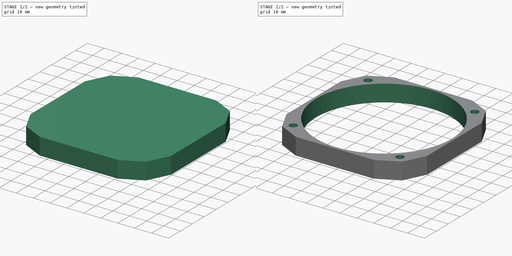
[diagram: build sequence overview — one tinted view per stage of 2, left to right]
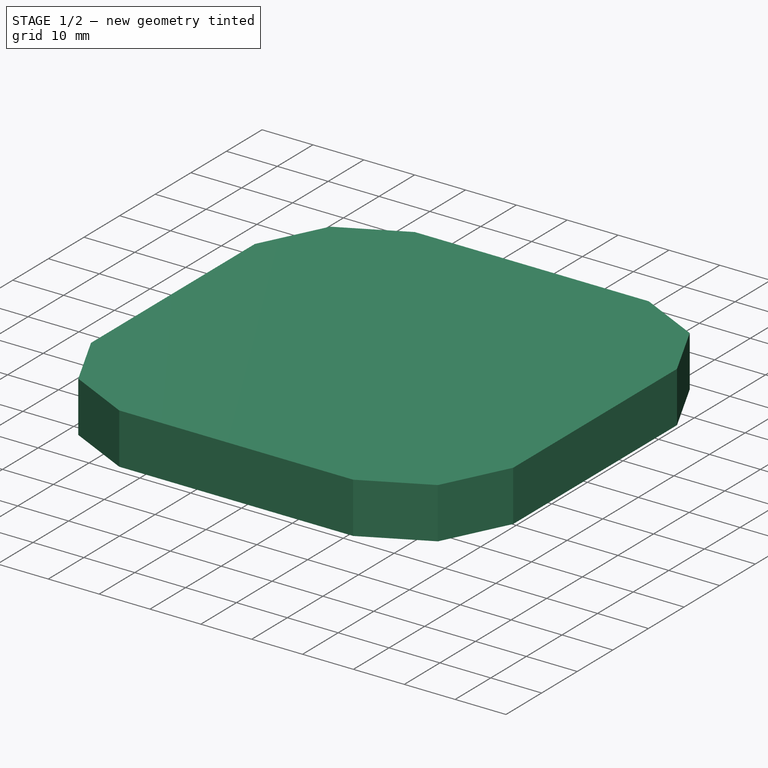
[diagram: stage 1 of 2 — iso view after this stage's code; geometry added in this stage tinted green]
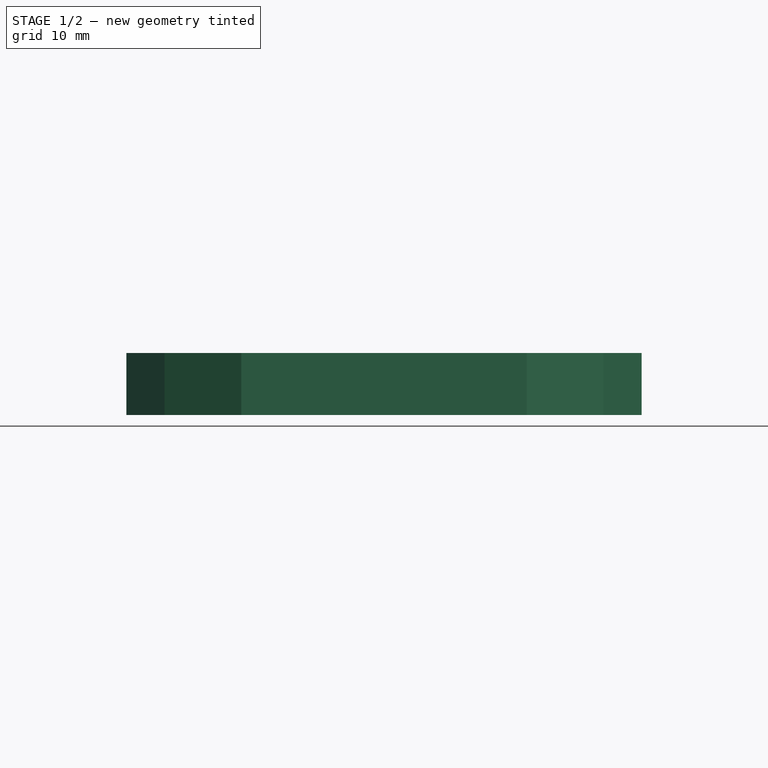
[diagram: stage 1 of 2 — front view after this stage's code; geometry added in this stage tinted green]
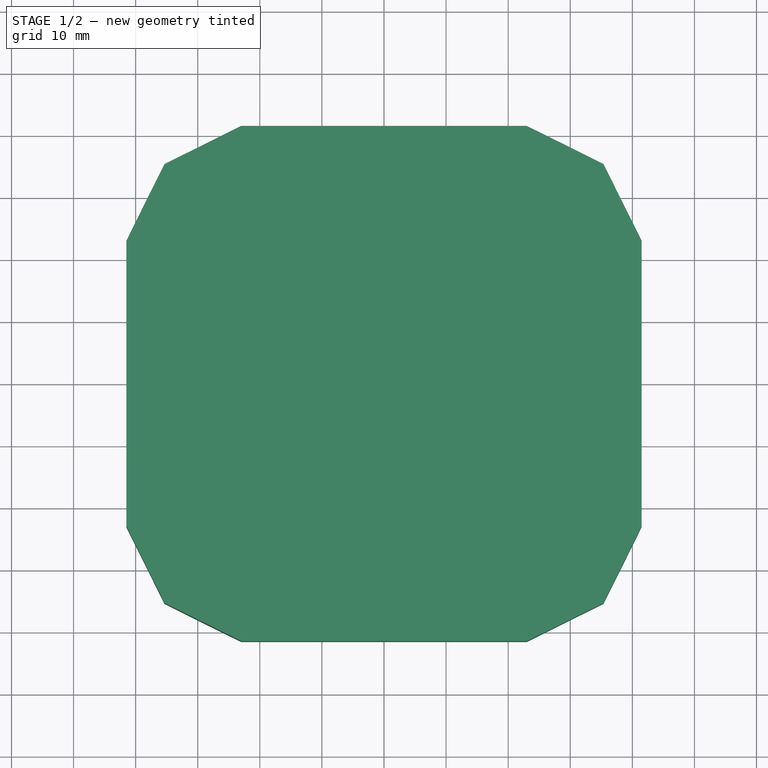
[diagram: stage 1 of 2 — top view after this stage's code; geometry added in this stage tinted green]
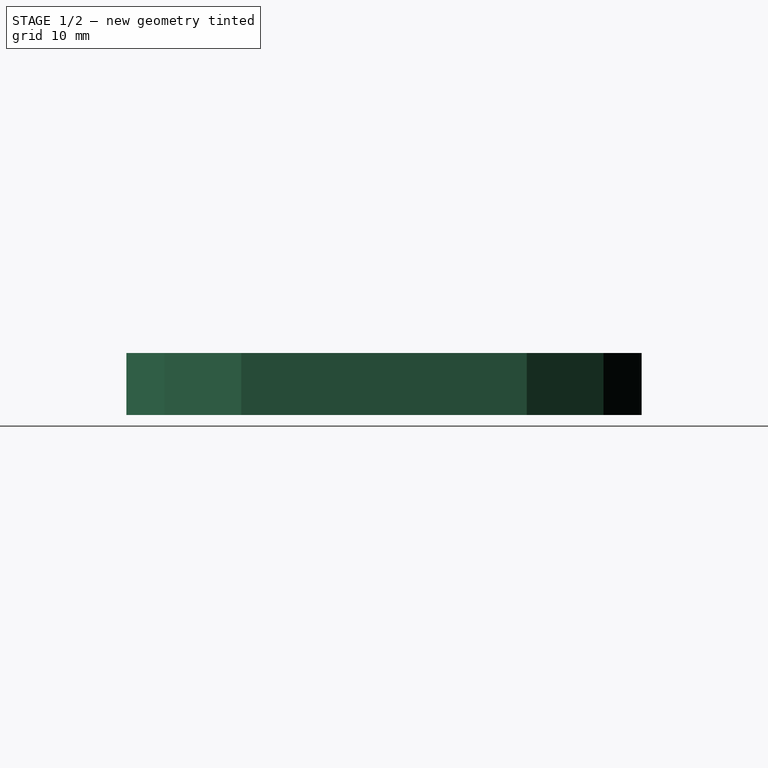
[diagram: stage 1 of 2 — right view after this stage's code; geometry added in this stage tinted green]
FCSTD DOCUMENT  (FreeCAD 0.18.3R)
Label: 80mm_Rundinstrument
License: All rights reserved
LicenseURL: http://en.wikipedia.org/wiki/All_rights_reserved
objects: Sketcher::SketchObject×2, PartDesign::Pad×1, PartDesign::Pocket×1, PartDesign::Body×1
note: 7 computed .brp shape members not serialized (recipe doc carries the construction recipe); baked Part::Feature solids carry a one-line shape summary decoded from their .brp

FEATURE [Sketcher::SketchObject] Sketch  label="Bohrungen_Rundinstrument_80mm"
  MapMode = 5
  sketch-geometry (16):
    g0: Circle CenterX=0 CenterY=0 CenterZ=0 NormalX=0 NormalY=0 NormalZ=1 AngleXU=0 Radius=40
    g1: Circle [constr] CenterX=0 CenterY=0 CenterZ=0 NormalX=0 NormalY=0 NormalZ=1 AngleXU=0 Radius=44.5
    g2: LineSegment [constr] StartX=0 StartY=-40 StartZ=0 EndX=0 EndY=40 EndZ=0
    g3: LineSegment [constr] StartX=-31.4663 StartY=31.4663 StartZ=0 EndX=31.4663 EndY=-31.4663 EndZ=0
    g4: LineSegment [constr] StartX=31.4663 StartY=31.4663 StartZ=0 EndX=-31.4663 EndY=-31.4663 EndZ=0
    g5: GeomPoint X=31.4663 Y=31.4663 Z=0
    g6: GeomPoint X=-31.4663 Y=31.4663 Z=0
    g7: GeomPoint X=31.4663 Y=31.4663 Z=0
    g8: GeomPoint X=-31.4663 Y=31.4663 Z=0
    g9: Circle CenterX=31.4663 CenterY=31.4663 CenterZ=0 NormalX=0 NormalY=0 NormalZ=1 AngleXU=0 Radius=2.25
    g10: Circle CenterX=-31.4663 CenterY=31.4663 CenterZ=0 NormalX=0 NormalY=0 NormalZ=1 AngleXU=0 Radius=2.25
    g11: Circle CenterX=31.4663 CenterY=-31.4663 CenterZ=0 NormalX=0 NormalY=0 NormalZ=1 AngleXU=0 Radius=2.25
    g12: GeomPoint X=-31.4663 Y=-31.4663 Z=0
    g13: GeomPoint X=31.4663 Y=-31.4663 Z=0
    g14: GeomPoint X=31.4663 Y=-31.4663 Z=0
    g15: Circle CenterX=-31.4663 CenterY=-31.4663 CenterZ=0 NormalX=0 NormalY=0 NormalZ=1 AngleXU=0 Radius=2.25
  constraints (38):
    c: DistanceX(g0) = 0
    c: DistanceY(g0) = 0
    c: Diameter(g0) = 80
    c: Coincident(g1,g0)
    c: Diameter(g1) = 89
    c: Vertical(g2)
    c: Angle(g2,g3) = 0.785398
    c: Equal(g3,g4) = 100
    c: Angle(g4,g3) = 1.5708
    c: PointOnObject(g5,g1)
    c: PointOnObject(g5,g4)
    c: PointOnObject(g6,g1)
    c: PointOnObject(g6,g3)
    c: PointOnObject(g7,g1)
    c: PointOnObject(g7,g4)
    c: PointOnObject(g8,g1)
    c: PointOnObject(g8,g3)
    c: Diameter(g9) = 4.5
    c: PointOnObject(g12,g1)
    c: PointOnObject(g12,g4)
    c: Coincident(g6,g10)
    c: Coincident(g9,g5)
    c: Coincident(g11,g13)
    c: Diameter(g10) = 4.5
    c: PointOnObject(g14,g1)
    c: PointOnObject(g14,g3)
    c: Coincident(g14,g11)
    c: Diameter(g11) = 4.5
    c: PointOnObject(g4,g1)
    c: PointOnObject(g2,g0)
    c: PointOnObject(g3,g1)
    c: PointOnObject(g4,g1)
    c: PointOnObject(g0,g3)
    c: PointOnObject(g0,g4)
    c: PointOnObject(g2,g0)
    c: PointOnObject(g0,g2)
    c: Coincident(g15,g12)
    c: Diameter(g15) = 4.5
FEATURE [Sketcher::SketchObject] Sketch001  label="Körper_Rundinstrument_80mm"
  MapMode = 5
  sketch-geometry (23):
    g0: Circle [constr] CenterX=0 CenterY=0 CenterZ=0 NormalX=0 NormalY=0 NormalZ=1 AngleXU=0 Radius=44.5
    g1: LineSegment [constr] StartX=0 StartY=-41.5 StartZ=0 EndX=0 EndY=41.5 EndZ=0
    g2: LineSegment [constr] StartX=-35.3553 StartY=35.3553 StartZ=0 EndX=35.3553 EndY=-35.3553 EndZ=0
    g3: LineSegment [constr] StartX=35.3553 StartY=35.3553 StartZ=0 EndX=-35.3553 EndY=-35.3553 EndZ=0
    g4: GeomPoint X=31.4663 Y=31.4663 Z=0
    g5: GeomPoint X=-31.4663 Y=31.4663 Z=0
    g6: GeomPoint X=31.4663 Y=31.4663 Z=0
    g7: GeomPoint X=-31.4663 Y=31.4663 Z=0
    g8: LineSegment [constr] StartX=-41.5 StartY=0 StartZ=0 EndX=41.5 EndY=0 EndZ=0
    g9: LineSegment StartX=-23 StartY=41.5 StartZ=0 EndX=23 EndY=41.5 EndZ=0
    g10: LineSegment StartX=-23 StartY=-41.5 StartZ=0 EndX=23 EndY=-41.5 EndZ=0
    g11: LineSegment StartX=-41.5 StartY=23 StartZ=0 EndX=-41.5 EndY=-23 EndZ=0
    g12: LineSegment StartX=41.5 StartY=23 StartZ=0 EndX=41.5 EndY=-23 EndZ=0
    g13: LineSegment StartX=-41.5 StartY=23 StartZ=0 EndX=-35.3553 EndY=35.3553 EndZ=0
    g14: LineSegment StartX=-35.3553 StartY=35.3553 StartZ=0 EndX=-23 EndY=41.5 EndZ=0
    g15: LineSegment StartX=23 StartY=41.5 StartZ=0 EndX=35.3553 EndY=35.3553 EndZ=0
    g16: LineSegment StartX=35.3553 StartY=35.3553 StartZ=0 EndX=41.5 EndY=23 EndZ=0
    g17: LineSegment StartX=41.5 StartY=-23 StartZ=0 EndX=35.3553 EndY=-35.3553 EndZ=0
    g18: LineSegment StartX=35.3553 StartY=-35.3553 StartZ=0 EndX=23 EndY=-41.5 EndZ=0
    g19: LineSegment StartX=-23 StartY=-41.5 StartZ=0 EndX=-35.3553 EndY=-35.3553 EndZ=0
    g20: LineSegment StartX=-35.3553 StartY=-35.3553 StartZ=0 EndX=-41.5 EndY=-23 EndZ=0
    g21: GeomPoint X=-31.4663 Y=-31.4663 Z=0
    g22: GeomPoint X=31.4663 Y=-31.4663 Z=0
  constraints (55):
    c: Diameter(g0) = 89
    c: Vertical(g1)
    c: DistanceY(g1,g1) = 83
    c: Distance(g2) = 100
    c: Angle(g1,g2) = 0.785398
    c: Equal(g2,g3) = 100
    c: Angle(g3,g2) = 1.5708
    c: PointOnObject(g4,g0)
    c: PointOnObject(g4,g3)
    c: PointOnObject(g5,g0)
    c: PointOnObject(g5,g2)
    c: PointOnObject(g6,g0)
    c: PointOnObject(g6,g3)
    c: PointOnObject(g7,g0)
    c: PointOnObject(g7,g2)
    c: Horizontal(g8)
    c: DistanceX(g8,g8) = 83
    c: Horizontal(g9)
    c: Horizontal(g10)
    c: Symmetric(g9,g9,g1)
    c: DistanceX(g9,g9) = 46
    c: DistanceX(g10,g10) = 46
    c: Symmetric(g10,g10,g1)
    c: Vertical(g11)
    c: DistanceY(g11,g11) = 46
    c: Vertical(g12)
    c: Equal(g11,g12) = 46
    c: Symmetric(g11,g11,g8)
    c: Symmetric(g12,g12,g8)
    c: Coincident(g11,g13)
    c: Coincident(g13,g2)
    c: Coincident(g13,g14)
    c: Coincident(g14,g9)
    c: Coincident(g9,g15)
    c: Coincident(g15,g3)
    c: Coincident(g15,g16)
    c: Coincident(g16,g12)
    c: Coincident(g12,g17)
    c: Coincident(g17,g2)
    c: Coincident(g17,g18)
    c: Coincident(g18,g10)
    c: Coincident(g10,g19)
    c: Coincident(g19,g3)
    c: Coincident(g19,g20)
    c: Coincident(g20,g11)
    c: PointOnObject(g21,g0)
    c: PointOnObject(g21,g3)
    c: PointOnObject(g22,g0)
    c: PointOnObject(g22,g2)
    c: DistanceX(g-1,g0) = 0
    c: DistanceY(g-1,g0) = 0
    c: Symmetric(g1,g1,g0)
    c: Symmetric(g8,g8,g0)
    c: Symmetric(g13,g17,g0)
    c: Symmetric(g19,g15,g0)
FEATURE [PartDesign::Pad] Pad
  Length = 10
  Length2 = 100
  Profile = -> Sketch001
  Refine = true
  Type = 0
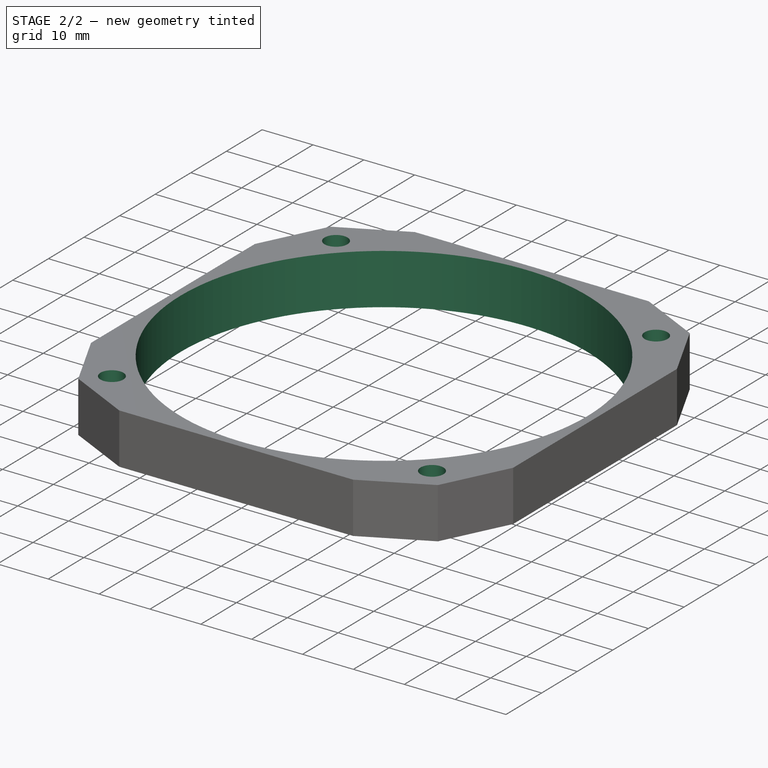
[diagram: stage 2 of 2 — iso view after this stage's code; geometry added in this stage tinted green]
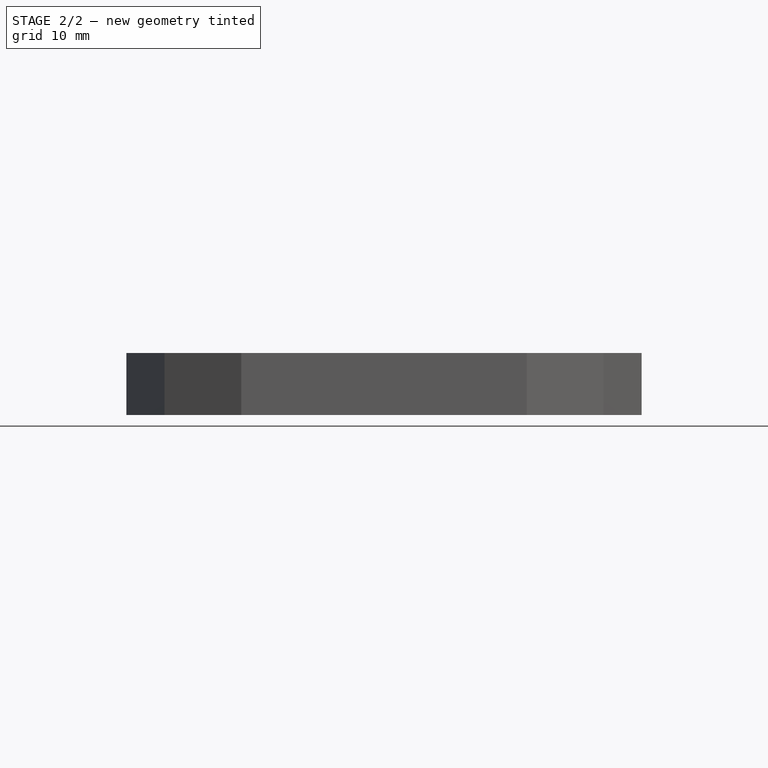
[diagram: stage 2 of 2 — front view after this stage's code; geometry added in this stage tinted green]
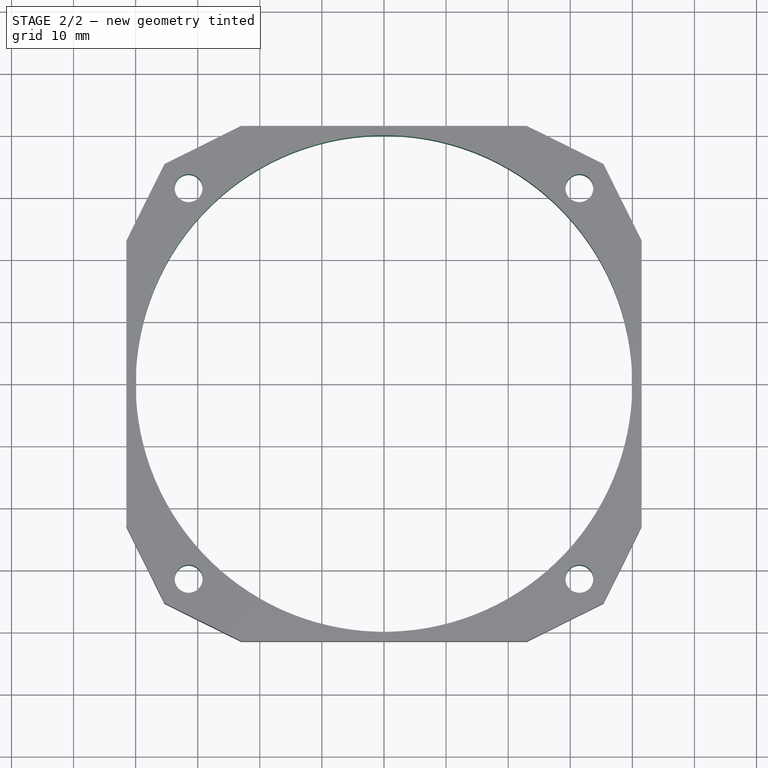
[diagram: stage 2 of 2 — top view after this stage's code; geometry added in this stage tinted green]
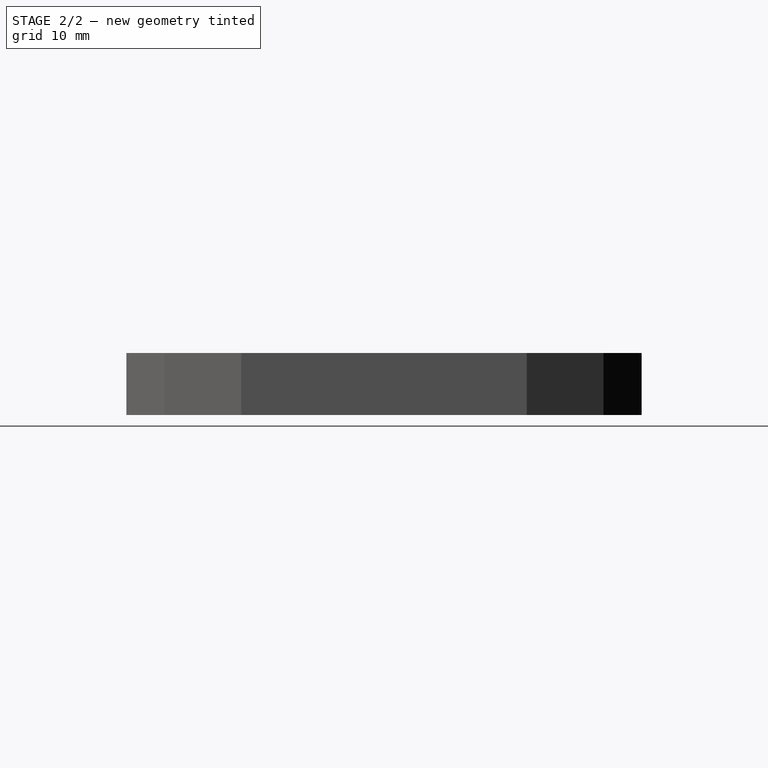
[diagram: stage 2 of 2 — right view after this stage's code; geometry added in this stage tinted green]
FEATURE [PartDesign::Pocket] Pocket
  BaseFeature = -> Pad
  Length = 10
  Length2 = 100
  Profile = -> Sketch
  Refine = true
  Reversed = true
  Type = 1
FEATURE [PartDesign::Body] Body  label="80mm_Rundinstrument"
  Group = -> [Pad,Pocket]
  Origin = -> Origin
  Tip = -> Pocket
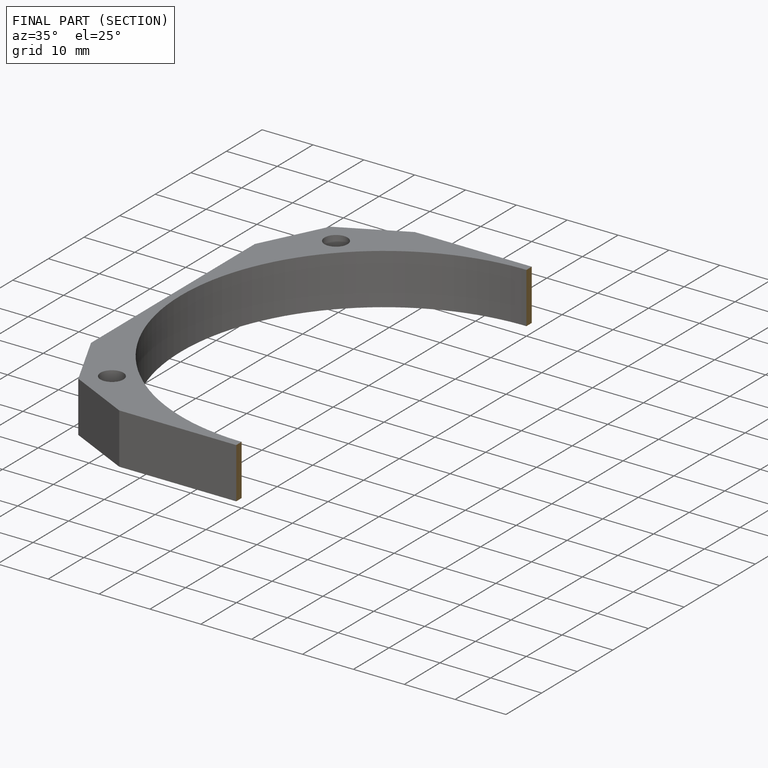
[diagram: finished part — half-section view (interior)]
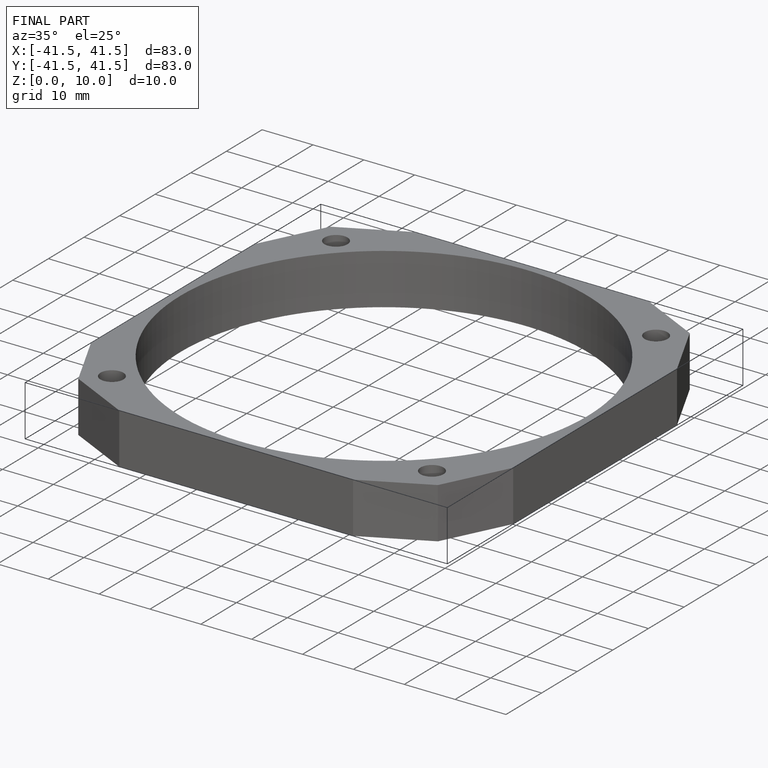
[diagram: finished part — iso view with bounding-box wireframe]
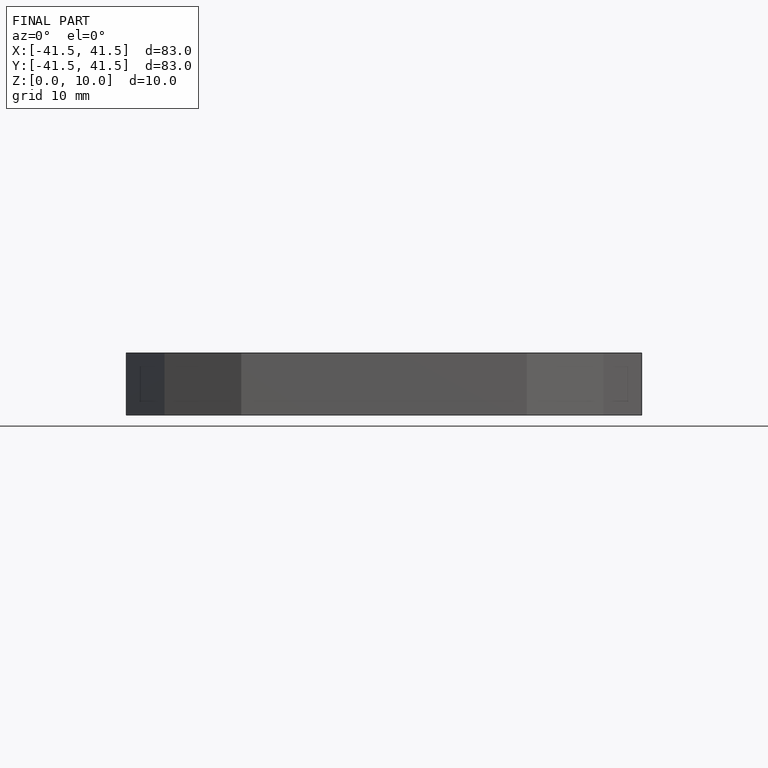
[diagram: finished part — front view with bounding-box wireframe]
